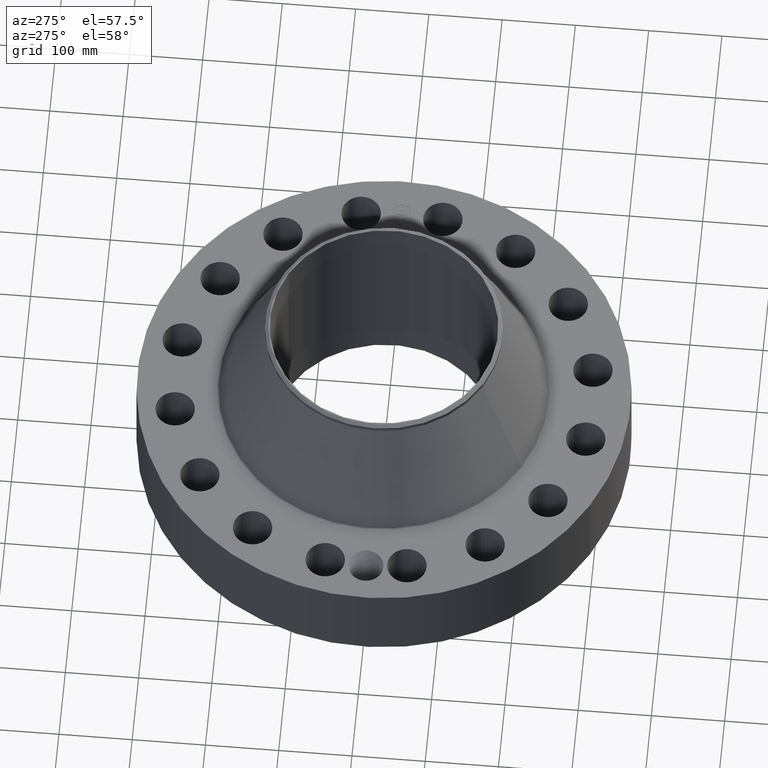
[diagram: clean part render]
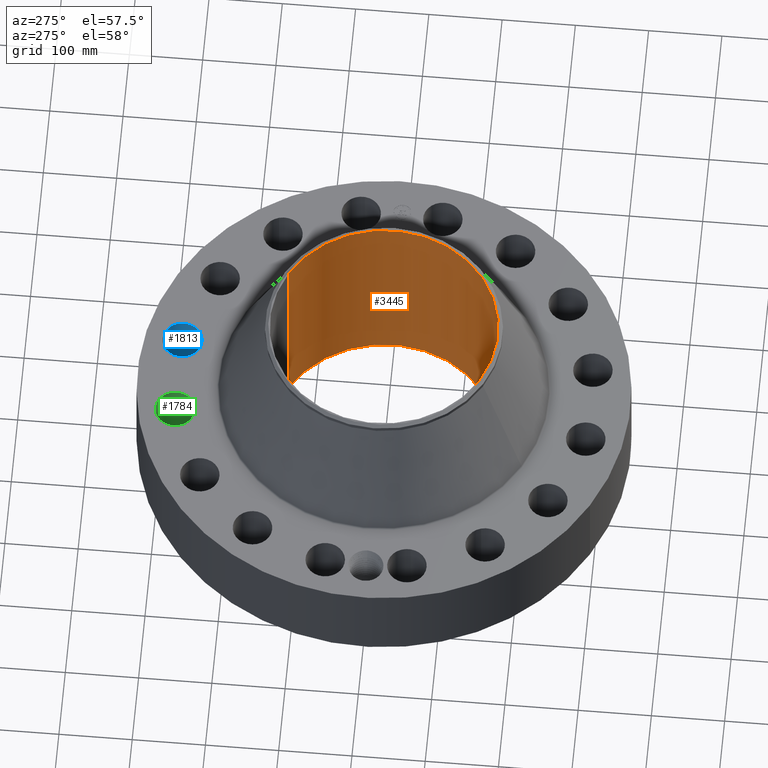
[diagram: same view with three faces highlighted in distinct colors, each labeled with its STEP entity id]
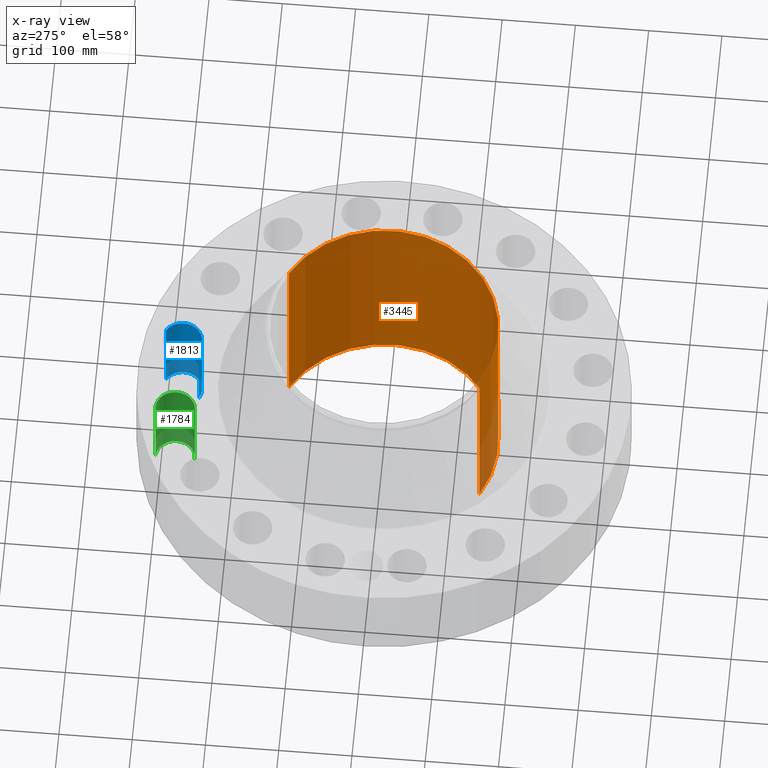
[diagram: x-ray of the same camera — body ghosted, the three highlighted faces saturated]
A machine part, auxiliary view with three faces highlighted in distinct colors.
The next image is the same camera in x-ray (body ghosted, the three faces saturated) — at least one of them is partly hidden behind the body in this view.
Their STEP definitions:

[orange] entity #3445 — the highlighted cylindrical surface (partial cylindrical patch) has radius 155.575 mm, axis along (0, 0, -1).
#2621=AXIS2_PLACEMENT_3D('Circle Axis2P3D',#2619,#2620,$) ;
#3376=AXIS2_PLACEMENT_3D('Cylinder Axis2P3D',#3373,#3374,#3375) ;
#3380=AXIS2_PLACEMENT_3D('Circle Axis2P3D',#3378,#3379,$) ;
#2619=CARTESIAN_POINT('Axis2P3D Location',(0.,0.,0.)) ;
#2623=CARTESIAN_POINT('Vertex',(2.93648142396,5.3751931916,-2.12603338259E-014)) ;
#2625=CARTESIAN_POINT('Vertex',(-2.93648142396,-5.3751931916,-2.12603338259E-014)) ;
#3373=CARTESIAN_POINT('Axis2P3D Location',(0.,0.,5.68500000002)) ;
#3378=CARTESIAN_POINT('Axis2P3D Location',(0.,0.,11.37)) ;
#3382=CARTESIAN_POINT('Vertex',(2.93648142396,5.3751931916,11.37)) ;
#3384=CARTESIAN_POINT('Vertex',(-2.93648142396,-5.3751931916,11.37)) ;
#3387=CARTESIAN_POINT('Line Origine',(2.93648142396,5.3751931916,5.68500000002)) ;
#3392=CARTESIAN_POINT('Line Origine',(-2.93648142396,-5.3751931916,5.68500000002)) ;
#3404=CARTESIAN_POINT('Control Point',(0.219395640473,-6.12106939621,0.820143615352)) ;
#3405=CARTESIAN_POINT('Control Point',(0.206921620698,-6.12151649873,0.797310075314)) ;
#3406=CARTESIAN_POINT('Control Point',(0.191477731952,-6.12203823282,0.776100464927)) ;
#3407=CARTESIAN_POINT('Control Point',(0.173343851012,-6.12259430267,0.757028225611)) ;
#3408=CARTESIAN_POINT('Control Point',(0.112127309826,-6.12420283015,0.707544385446)) ;
#3409=CARTESIAN_POINT('Control Point',(0.0349658305052,-6.12524788727,0.68402267762)) ;
#3410=CARTESIAN_POINT('Control Point',(-0.019577303279,-6.12532580627,0.682387715494)) ;
#3411=CARTESIAN_POINT('Control Point',(-0.124167715977,-6.12417501442,0.707538803588)) ;
#3412=CARTESIAN_POINT('Control Point',(-0.203215611132,-6.12179391108,0.780470007618)) ;
#3413=CARTESIAN_POINT('Control Point',(-0.232187100562,-6.12062208721,0.826696198963)) ;
#3414=CARTESIAN_POINT('Control Point',(-0.255836668464,-6.11965803006,0.904847993821)) ;
#3415=CARTESIAN_POINT('Control Point',(-0.248289587128,-6.11996542426,0.984225302466)) ;
#3416=CARTESIAN_POINT('Control Point',(-0.242055648775,-6.12022304687,1.01079869656)) ;
#3417=CARTESIAN_POINT('Control Point',(-0.232319658988,-6.12060616452,1.03619912745)) ;
#3418=CARTESIAN_POINT('Control Point',(-0.219395640473,-6.12106939621,1.05985638466)) ;
#3419=CARTESIAN_POINT('Vertex',(0.219395640473,-6.12106939621,0.820143615352)) ;
#3421=CARTESIAN_POINT('Vertex',(-0.219395640473,-6.12106939621,1.05985638466)) ;
#3425=CARTESIAN_POINT('Control Point',(-0.219395640473,-6.12106939621,1.05985638466)) ;
#3426=CARTESIAN_POINT('Control Point',(-0.206921620698,-6.12151649873,1.08268992469)) ;
#3427=CARTESIAN_POINT('Control Point',(-0.191477731951,-6.12203823282,1.10389953508)) ;
#3428=CARTESIAN_POINT('Control Point',(-0.173343851015,-6.12259430267,1.12297177439)) ;
#3429=CARTESIAN_POINT('Control Point',(-0.112127309817,-6.12420283015,1.17245561457)) ;
#3430=CARTESIAN_POINT('Control Point',(-0.034965830478,-6.12524788727,1.1959773224)) ;
#3431=CARTESIAN_POINT('Control Point',(0.0195773032466,-6.12532580627,1.19761228452)) ;
#3432=CARTESIAN_POINT('Control Point',(0.124167715987,-6.12417501442,1.17246119643)) ;
#3433=CARTESIAN_POINT('Control Point',(0.203215611166,-6.12179391108,1.09952999236)) ;
#3434=CARTESIAN_POINT('Control Point',(0.232187100546,-6.12062208721,1.05330380109)) ;
#3435=CARTESIAN_POINT('Control Point',(0.255836668467,-6.11965803006,0.975152006212)) ;
#3436=CARTESIAN_POINT('Control Point',(0.248289587128,-6.11996542426,0.895774697543)) ;
#3437=CARTESIAN_POINT('Control Point',(0.242055648776,-6.12022304687,0.869201303446)) ;
#3438=CARTESIAN_POINT('Control Point',(0.232319658988,-6.12060616452,0.843800872558)) ;
#3439=CARTESIAN_POINT('Control Point',(0.219395640473,-6.12106939621,0.820143615352)) ;
#2620=DIRECTION('Axis2P3D Direction',(0.,0.,-0.0393700787402)) ;
#3374=DIRECTION('Axis2P3D Direction',(0.,0.,-0.0393700787402)) ;
#3375=DIRECTION('Axis2P3D XDirection',(-0.0188750212049,-0.0345504945626,0.)) ;
#3379=DIRECTION('Axis2P3D Direction',(0.,0.,-0.0393700787402)) ;
#3388=DIRECTION('Vector Direction',(0.,0.,-0.0393700787402)) ;
#3393=DIRECTION('Vector Direction',(0.,0.,-0.0393700787402)) ;
#3389=VECTOR('Line Direction',#3388,0.0393700787402) ;
#3394=VECTOR('Line Direction',#3393,0.0393700787402) ;
#3398=ORIENTED_EDGE('',*,*,#3386,.F.) ;
#3399=ORIENTED_EDGE('',*,*,#3391,.T.) ;
#3400=ORIENTED_EDGE('',*,*,#2627,.T.) ;
#3401=ORIENTED_EDGE('',*,*,#3396,.F.) ;
#3442=ORIENTED_EDGE('',*,*,#3423,.F.) ;
#3443=ORIENTED_EDGE('',*,*,#3440,.F.) ;
#3444=FACE_BOUND('',#3441,.T.) ;
#3445=ADVANCED_FACE('PartBody',(#3402,#3444),#3377,.F.) ;
#3403=B_SPLINE_CURVE_WITH_KNOTS('',5,(#3404,#3405,#3406,#3407,#3408,#3409,#3410,#3411,#3412,#3413,#3414,#3415,#3416,#3417,#3418),.UNSPECIFIED.,.F.,.U.,(6,3,3,3,6),(0.,4.67377814413,14.0224723823,23.3724825382,28.2148666578),.UNSPECIFIED.) ;
#3424=B_SPLINE_CURVE_WITH_KNOTS('',5,(#3425,#3426,#3427,#3428,#3429,#3430,#3431,#3432,#3433,#3434,#3435,#3436,#3437,#3438,#3439),.UNSPECIFIED.,.F.,.U.,(6,3,3,3,6),(0.,4.67377814429,14.0224723852,23.3724825452,28.2148666649),.UNSPECIFIED.) ;
#2622=CIRCLE('generated circle',#2621,6.12500000002) ;
#3381=CIRCLE('generated circle',#3380,6.12500000002) ;
#3377=CYLINDRICAL_SURFACE('generated cylinder',#3376,6.12500000002) ;
#2627=EDGE_CURVE('',#2624,#2626,#2622,.T.) ;
#3386=EDGE_CURVE('',#3383,#3385,#3381,.T.) ;
#3391=EDGE_CURVE('',#3383,#2624,#3390,.T.) ;
#3396=EDGE_CURVE('',#3385,#2626,#3395,.T.) ;
#3423=EDGE_CURVE('',#3420,#3422,#3403,.T.) ;
#3440=EDGE_CURVE('',#3422,#3420,#3424,.T.) ;
#3397=EDGE_LOOP('',(#3398,#3399,#3400,#3401)) ;
#3441=EDGE_LOOP('',(#3442,#3443)) ;
#3402=FACE_OUTER_BOUND('',#3397,.T.) ;
#3390=LINE('Line',#3387,#3389) ;
#3395=LINE('Line',#3392,#3394) ;
#2624=VERTEX_POINT('',#2623) ;
#2626=VERTEX_POINT('',#2625) ;
#3383=VERTEX_POINT('',#3382) ;
#3385=VERTEX_POINT('',#3384) ;
#3420=VERTEX_POINT('',#3419) ;
#3422=VERTEX_POINT('',#3421) ;

[blue] entity #1813 — the highlighted cylindrical surface (edge-blend (fillet) strip) has radius 26.924 mm, axis along (0, 0, -1).
#487=AXIS2_PLACEMENT_3D('Circle Axis2P3D',#485,#486,$) ;
#951=AXIS2_PLACEMENT_3D('Circle Axis2P3D',#949,#950,$) ;
#1788=AXIS2_PLACEMENT_3D('Cylinder Axis2P3D',#1785,#1786,#1787) ;
#480=CARTESIAN_POINT('Vertex',(1.68657505177,10.103596889,0.250000000001)) ;
#482=CARTESIAN_POINT('Vertex',(2.70295719361,11.9640719202,0.250000000001)) ;
#485=CARTESIAN_POINT('Axis2P3D Location',(2.19476612269,11.0338344046,0.250000000001)) ;
#949=CARTESIAN_POINT('Axis2P3D Location',(2.19476612269,11.0338344046,5.13000000002)) ;
#953=CARTESIAN_POINT('Vertex',(2.70295719361,11.9640719202,5.13000000002)) ;
#955=CARTESIAN_POINT('Vertex',(1.68657505177,10.103596889,5.13000000002)) ;
#1785=CARTESIAN_POINT('Axis2P3D Location',(2.19476612269,11.0338344046,5.12606299215)) ;
#1790=CARTESIAN_POINT('Line Origine',(1.68657505177,10.103596889,2.69000000001)) ;
#1795=CARTESIAN_POINT('Line Origine',(2.70295719361,11.9640719202,2.69000000001)) ;
#486=DIRECTION('Axis2P3D Direction',(0.,0.,-0.0393700787402)) ;
#950=DIRECTION('Axis2P3D Direction',(0.,0.,-0.0393700787402)) ;
#1786=DIRECTION('Axis2P3D Direction',(0.,0.,-0.0393700787402)) ;
#1787=DIRECTION('Axis2P3D XDirection',(0.0188750212049,0.0345504945626,0.)) ;
#1791=DIRECTION('Vector Direction',(0.,0.,-0.0393700787402)) ;
#1796=DIRECTION('Vector Direction',(0.,0.,-0.0393700787402)) ;
#1792=VECTOR('Line Direction',#1791,0.0393700787402) ;
#1797=VECTOR('Line Direction',#1796,0.0393700787402) ;
#1808=ORIENTED_EDGE('',*,*,#1799,.F.) ;
#1809=ORIENTED_EDGE('',*,*,#489,.T.) ;
#1810=ORIENTED_EDGE('',*,*,#1794,.T.) ;
#1811=ORIENTED_EDGE('',*,*,#957,.F.) ;
#1813=ADVANCED_FACE('PartBody',(#1812),#1789,.F.) ;
#488=CIRCLE('generated circle',#487,1.06) ;
#952=CIRCLE('generated circle',#951,1.06) ;
#1789=CYLINDRICAL_SURFACE('generated cylinder',#1788,1.06) ;
#489=EDGE_CURVE('',#483,#481,#488,.T.) ;
#957=EDGE_CURVE('',#954,#956,#952,.T.) ;
#1794=EDGE_CURVE('',#481,#956,#1793,.F.) ;
#1799=EDGE_CURVE('',#483,#954,#1798,.F.) ;
#1807=EDGE_LOOP('',(#1808,#1809,#1810,#1811)) ;
#1812=FACE_OUTER_BOUND('',#1807,.T.) ;
#1793=LINE('Line',#1790,#1792) ;
#1798=LINE('Line',#1795,#1797) ;
#481=VERTEX_POINT('',#480) ;
#483=VERTEX_POINT('',#482) ;
#954=VERTEX_POINT('',#953) ;
#956=VERTEX_POINT('',#955) ;

[green] entity #1784 — the highlighted cylindrical surface (edge-blend (fillet) strip) has radius 26.924 mm, axis along (0, 0, -1).
#469=AXIS2_PLACEMENT_3D('Circle Axis2P3D',#467,#468,$) ;
#933=AXIS2_PLACEMENT_3D('Circle Axis2P3D',#931,#932,$) ;
#1759=AXIS2_PLACEMENT_3D('Cylinder Axis2P3D',#1756,#1757,#1758) ;
#462=CARTESIAN_POINT('Vertex',(-2.30828696633,9.97993070022,0.250000000001)) ;
#464=CARTESIAN_POINT('Vertex',(-2.08124527905,12.0877381089,0.250000000001)) ;
#467=CARTESIAN_POINT('Axis2P3D Location',(-2.19476612269,11.0338344046,0.250000000001)) ;
#931=CARTESIAN_POINT('Axis2P3D Location',(-2.19476612269,11.0338344046,5.13000000002)) ;
#935=CARTESIAN_POINT('Vertex',(-2.08124527905,12.0877381089,5.13000000002)) ;
#937=CARTESIAN_POINT('Vertex',(-2.30828696633,9.97993070022,5.13000000002)) ;
#1756=CARTESIAN_POINT('Axis2P3D Location',(-2.19476612269,11.0338344046,5.12606299215)) ;
#1761=CARTESIAN_POINT('Line Origine',(-2.30828696633,9.97993070022,2.69000000001)) ;
#1766=CARTESIAN_POINT('Line Origine',(-2.08124527905,12.0877381089,2.69000000001)) ;
#468=DIRECTION('Axis2P3D Direction',(0.,0.,-0.0393700787402)) ;
#932=DIRECTION('Axis2P3D Direction',(0.,0.,-0.0393700787402)) ;
#1757=DIRECTION('Axis2P3D Direction',(0.,0.,-0.0393700787402)) ;
#1758=DIRECTION('Axis2P3D XDirection',(0.00421634391778,0.0391436526652,0.)) ;
#1762=DIRECTION('Vector Direction',(0.,0.,-0.0393700787402)) ;
#1767=DIRECTION('Vector Direction',(0.,0.,-0.0393700787402)) ;
#1763=VECTOR('Line Direction',#1762,0.0393700787402) ;
#1768=VECTOR('Line Direction',#1767,0.0393700787402) ;
#1779=ORIENTED_EDGE('',*,*,#1770,.F.) ;
#1780=ORIENTED_EDGE('',*,*,#471,.T.) ;
#1781=ORIENTED_EDGE('',*,*,#1765,.T.) ;
#1782=ORIENTED_EDGE('',*,*,#939,.F.) ;
#1784=ADVANCED_FACE('PartBody',(#1783),#1760,.F.) ;
#470=CIRCLE('generated circle',#469,1.06) ;
#934=CIRCLE('generated circle',#933,1.06) ;
#1760=CYLINDRICAL_SURFACE('generated cylinder',#1759,1.06) ;
#471=EDGE_CURVE('',#465,#463,#470,.T.) ;
#939=EDGE_CURVE('',#936,#938,#934,.T.) ;
#1765=EDGE_CURVE('',#463,#938,#1764,.F.) ;
#1770=EDGE_CURVE('',#465,#936,#1769,.F.) ;
#1778=EDGE_LOOP('',(#1779,#1780,#1781,#1782)) ;
#1783=FACE_OUTER_BOUND('',#1778,.T.) ;
#1764=LINE('Line',#1761,#1763) ;
#1769=LINE('Line',#1766,#1768) ;
#463=VERTEX_POINT('',#462) ;
#465=VERTEX_POINT('',#464) ;
#936=VERTEX_POINT('',#935) ;
#938=VERTEX_POINT('',#937) ;